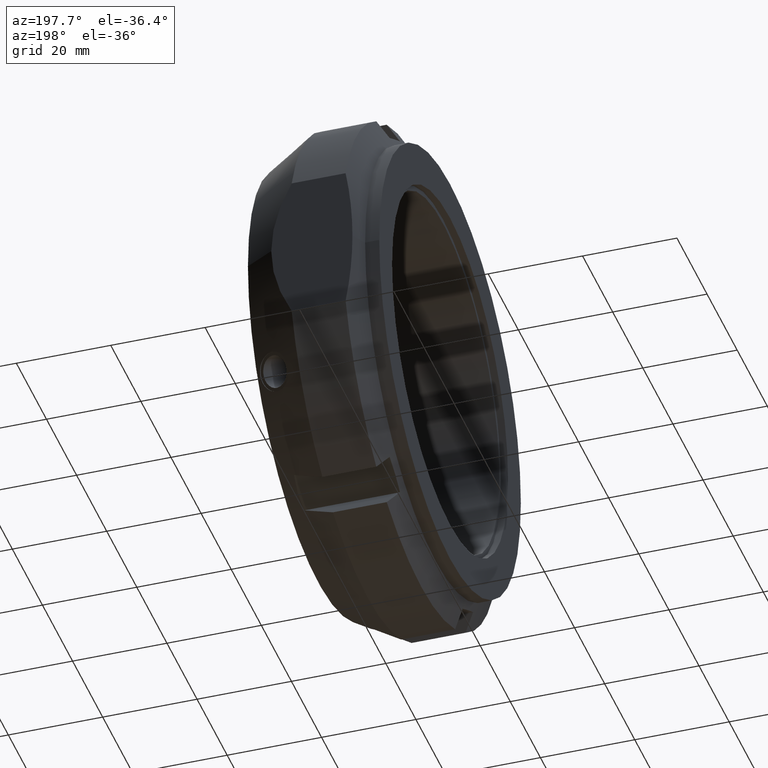
[diagram: clean part render]
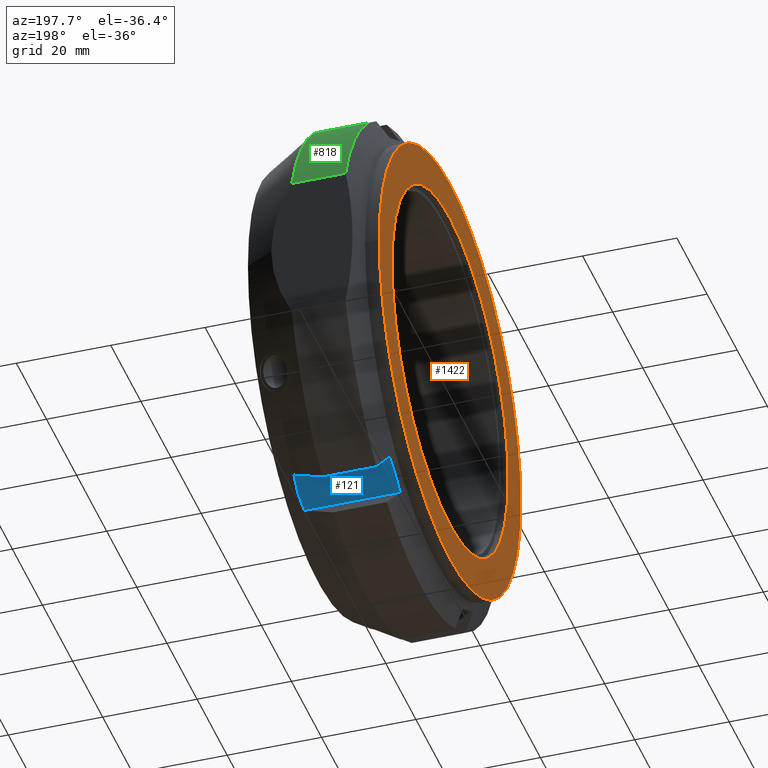
[diagram: same view with three faces highlighted in distinct colors, each labeled with its STEP entity id]
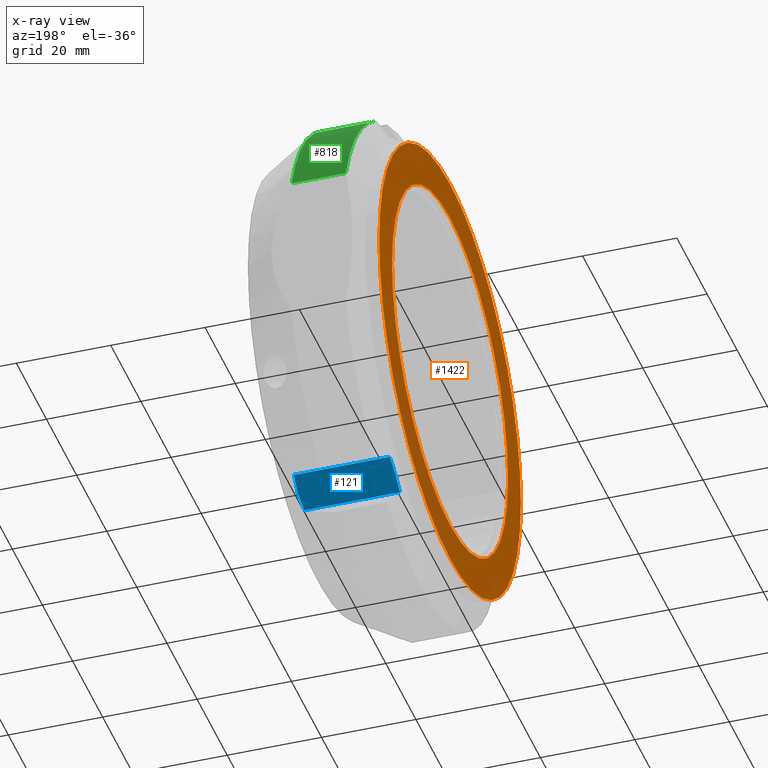
[diagram: x-ray of the same camera — body ghosted, the three highlighted faces saturated]
A machine part, auxiliary view with three faces highlighted in distinct colors.
The next image is the same camera in x-ray (body ghosted, the three faces saturated) — at least one of them is partly hidden behind the body in this view.
Their STEP definitions:

[orange] entity #1422 — the highlighted planar face has unit normal (-1, 0, 0).
#1388=CARTESIAN_POINT('',(-1.082467E-014,38.5,0.0));
#1389=VERTEX_POINT('',#1388);
#1390=CARTESIAN_POINT('',(-1.082467E-014,0.0,0.0));
#1391=DIRECTION('',(1.0,0.0,0.0));
#1392=DIRECTION('',(0.0,1.0,0.0));
#1393=AXIS2_PLACEMENT_3D('',#1390,#1391,#1392);
#1394=CIRCLE('',#1393,38.5);
#1395=EDGE_CURVE('',#1389,#1389,#1394,.T.);
#1403=CARTESIAN_POINT('',(-1.207368E-014,42.75,0.0));
#1404=DIRECTION('',(-1.0,0.0,0.0));
#1405=DIRECTION('',(0.0,0.0,1.0));
#1406=AXIS2_PLACEMENT_3D('',#1403,#1404,#1405);
#1407=PLANE('',#1406);
#1408=CARTESIAN_POINT('',(-1.332268E-014,47.0,0.0));
#1409=VERTEX_POINT('',#1408);
#1410=CARTESIAN_POINT('',(-1.332268E-014,0.0,0.0));
#1411=DIRECTION('',(1.0,0.0,0.0));
#1412=DIRECTION('',(0.0,1.0,0.0));
#1413=AXIS2_PLACEMENT_3D('',#1410,#1411,#1412);
#1414=CIRCLE('',#1413,47.0);
#1415=EDGE_CURVE('',#1409,#1409,#1414,.T.);
#1416=ORIENTED_EDGE('',*,*,#1415,.F.);
#1417=EDGE_LOOP('',(#1416));
#1418=FACE_OUTER_BOUND('',#1417,.T.);
#1419=ORIENTED_EDGE('',*,*,#1395,.T.);
#1420=EDGE_LOOP('',(#1419));
#1421=FACE_BOUND('',#1420,.T.);
#1422=ADVANCED_FACE('',(#1418,#1421),#1407,.T.);

[blue] entity #121 — the highlighted planar face has unit normal (0, 0.5, -0.866).
#68=CARTESIAN_POINT('',(0.0,20.785898384862197,-44.002232083545294));
#69=DIRECTION('',(0.0,0.499999999999999,-0.866025403784439));
#70=DIRECTION('',(0.0,0.866025403784439,0.499999999999999));
#71=AXIS2_PLACEMENT_3D('',#68,#69,#70);
#72=PLANE('',#71);
#73=CARTESIAN_POINT('',(3.961097042588725,27.714101615137707,-40.002232083545302));
#74=VERTEX_POINT('',#73);
#75=CARTESIAN_POINT('',(3.961097042588727,20.7858983848622,-44.002232083545294));
#76=VERTEX_POINT('',#75);
#77=CARTESIAN_POINT('',(3.961097042588725,27.714101615137707,-40.002232083545302));
#78=CARTESIAN_POINT('',(3.771275463303134,24.25000000008319,-42.002232083497248));
#79=CARTESIAN_POINT('',(3.961097042588726,20.7858983848622,-44.002232083545294));
#87=(BOUNDED_CURVE()B_SPLINE_CURVE(2,(#77,#78,#79),.UNSPECIFIED.,.F.,.U.)B_SPLINE_CURVE_WITH_KNOTS((3,3),(1.604674309343382,2.441723265471637),.UNSPECIFIED.)CURVE()GEOMETRIC_REPRESENTATION_ITEM()RATIONAL_B_SPLINE_CURVE((1.039472486597281,1.043001740206912,1.039472486597139))REPRESENTATION_ITEM(''));
#88=EDGE_CURVE('',#74,#76,#87,.T.);
#89=ORIENTED_EDGE('',*,*,#88,.F.);
#90=CARTESIAN_POINT('',(24.250683468449324,27.714101615137711,-40.002232083545302));
#91=VERTEX_POINT('',#90);
#92=CARTESIAN_POINT('',(3.961097042588725,27.714101615137707,-40.002232083545302));
#93=DIRECTION('',(1.0,0.0,0.0));
#94=VECTOR('',#93,20.289586425860598);
#95=LINE('',#92,#94);
#96=EDGE_CURVE('',#74,#91,#95,.T.);
#97=ORIENTED_EDGE('',*,*,#96,.T.);
#98=CARTESIAN_POINT('',(24.250683468449317,20.7858983848622,-44.002232083545294));
#99=VERTEX_POINT('',#98);
#100=CARTESIAN_POINT('',(24.250683468449317,20.7858983848622,-44.002232083545294));
#101=CARTESIAN_POINT('',(24.820148206266559,24.250000000000359,-42.002232083545067));
#102=CARTESIAN_POINT('',(24.250683468449324,27.714101615137711,-40.002232083545302));
#110=(BOUNDED_CURVE()B_SPLINE_CURVE(2,(#100,#101,#102),.UNSPECIFIED.,.F.,.U.)B_SPLINE_CURVE_WITH_KNOTS((3,3),(1.68623290964082,2.565825415453048),.UNSPECIFIED.)CURVE()GEOMETRIC_REPRESENTATION_ITEM()RATIONAL_B_SPLINE_CURVE((1.039472486597297,1.043001740206826,1.039472486597297))REPRESENTATION_ITEM(''));
#111=EDGE_CURVE('',#99,#91,#110,.T.);
#112=ORIENTED_EDGE('',*,*,#111,.F.);
#113=CARTESIAN_POINT('',(3.961097042588727,20.785898384862197,-44.002232083545294));
#114=DIRECTION('',(1.0,0.0,0.0));
#115=VECTOR('',#114,20.289586425860591);
#116=LINE('',#113,#115);
#117=EDGE_CURVE('',#76,#99,#116,.T.);
#118=ORIENTED_EDGE('',*,*,#117,.F.);
#119=EDGE_LOOP('',(#89,#97,#112,#118));
#120=FACE_OUTER_BOUND('',#119,.T.);
#121=ADVANCED_FACE('',(#120),#72,.T.);

[green] entity #818 — the highlighted cylindrical surface (partial cylindrical patch) has radius 52.5 mm, axis along (1, 0, 0).
#502=CARTESIAN_POINT('',(6.175426480542923,29.637800245633173,43.33417585001412));
#503=VERTEX_POINT('',#502);
#517=CARTESIAN_POINT('',(6.175426480542923,50.000000000000043,16.007810593581993));
#518=VERTEX_POINT('',#517);
#519=CARTESIAN_POINT('',(6.175426480542923,0.0,0.0));
#520=DIRECTION('',(1.0,0.0,0.0));
#521=DIRECTION('',(0.0,1.0,0.0));
#522=AXIS2_PLACEMENT_3D('',#519,#520,#521);
#523=CIRCLE('',#522,52.5);
#524=EDGE_CURVE('',#518,#503,#523,.T.);
#639=CARTESIAN_POINT('',(17.607695154586708,29.637800245633169,43.334175850014105));
#640=VERTEX_POINT('',#639);
#654=CARTESIAN_POINT('',(6.175426480542923,29.637800245633173,43.33417585001412));
#655=DIRECTION('',(1.0,0.0,0.0));
#656=VECTOR('',#655,11.432268674043785);
#657=LINE('',#654,#656);
#658=EDGE_CURVE('',#503,#640,#657,.T.);
#794=CARTESIAN_POINT('',(11.891560817564812,0.0,0.0));
#795=DIRECTION('',(1.0,0.0,0.0));
#796=DIRECTION('',(0.0,1.0,0.0));
#797=AXIS2_PLACEMENT_3D('',#794,#795,#796);
#798=CYLINDRICAL_SURFACE('',#797,52.5);
#799=ORIENTED_EDGE('',*,*,#658,.T.);
#800=CARTESIAN_POINT('',(17.6076951545867,50.000000000000043,16.007810593581993));
#801=VERTEX_POINT('',#800);
#802=CARTESIAN_POINT('',(17.6076951545867,0.0,0.0));
#803=DIRECTION('',(1.0,0.0,0.0));
#804=DIRECTION('',(0.0,1.0,0.0));
#805=AXIS2_PLACEMENT_3D('',#802,#803,#804);
#806=CIRCLE('',#805,52.5);
#807=EDGE_CURVE('',#801,#640,#806,.T.);
#808=ORIENTED_EDGE('',*,*,#807,.F.);
#809=CARTESIAN_POINT('',(17.6076951545867,50.000000000000043,16.007810593581993));
#810=DIRECTION('',(-1.0,0.0,0.0));
#811=VECTOR('',#810,11.432268674043778);
#812=LINE('',#809,#811);
#813=EDGE_CURVE('',#801,#518,#812,.T.);
#814=ORIENTED_EDGE('',*,*,#813,.T.);
#815=ORIENTED_EDGE('',*,*,#524,.T.);
#816=EDGE_LOOP('',(#799,#808,#814,#815));
#817=FACE_OUTER_BOUND('',#816,.T.);
#818=ADVANCED_FACE('',(#817),#798,.T.);